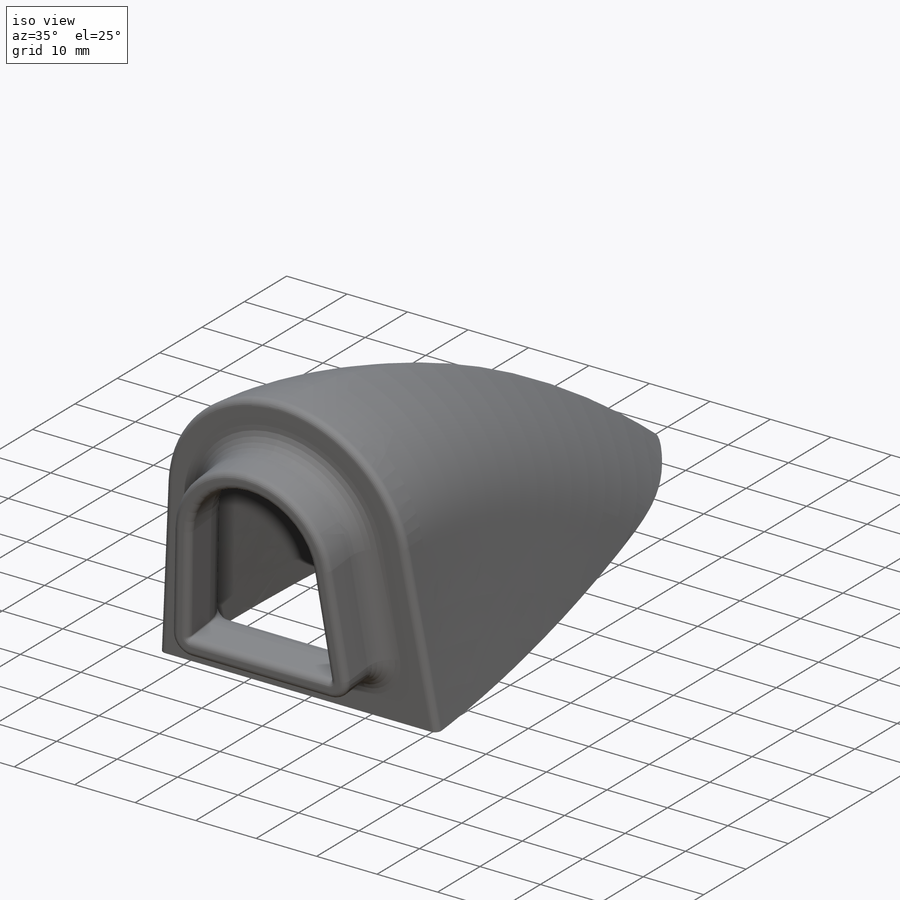
[diagram: iso view]
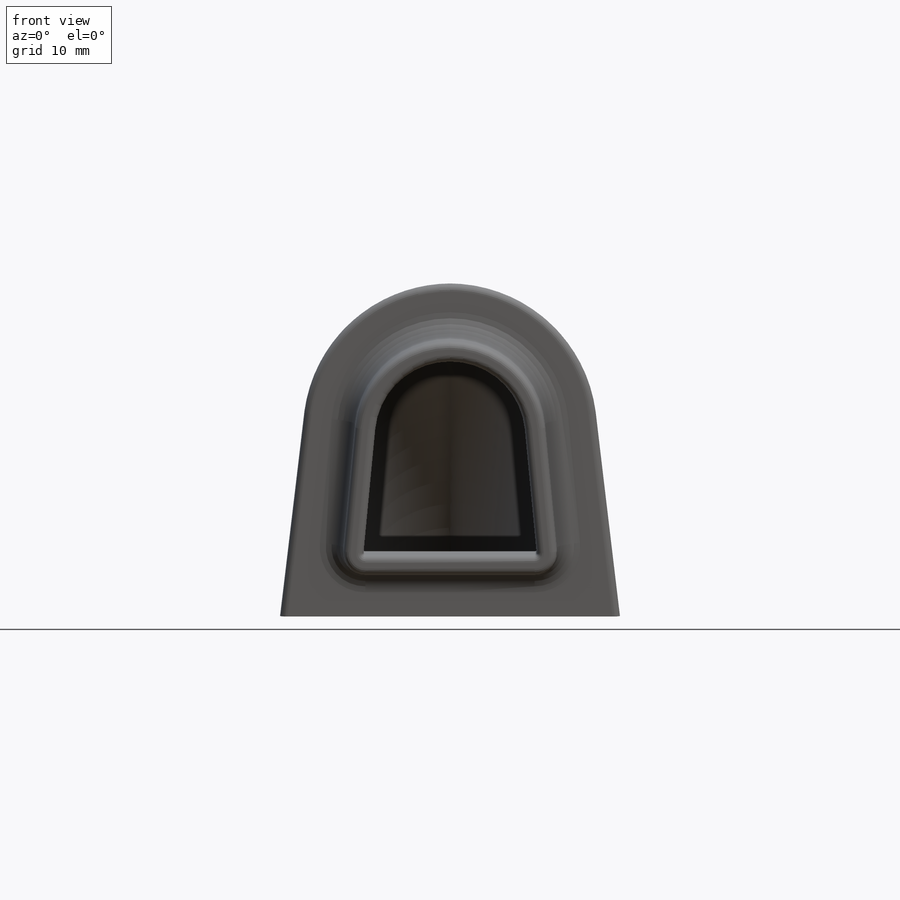
[diagram: front view]
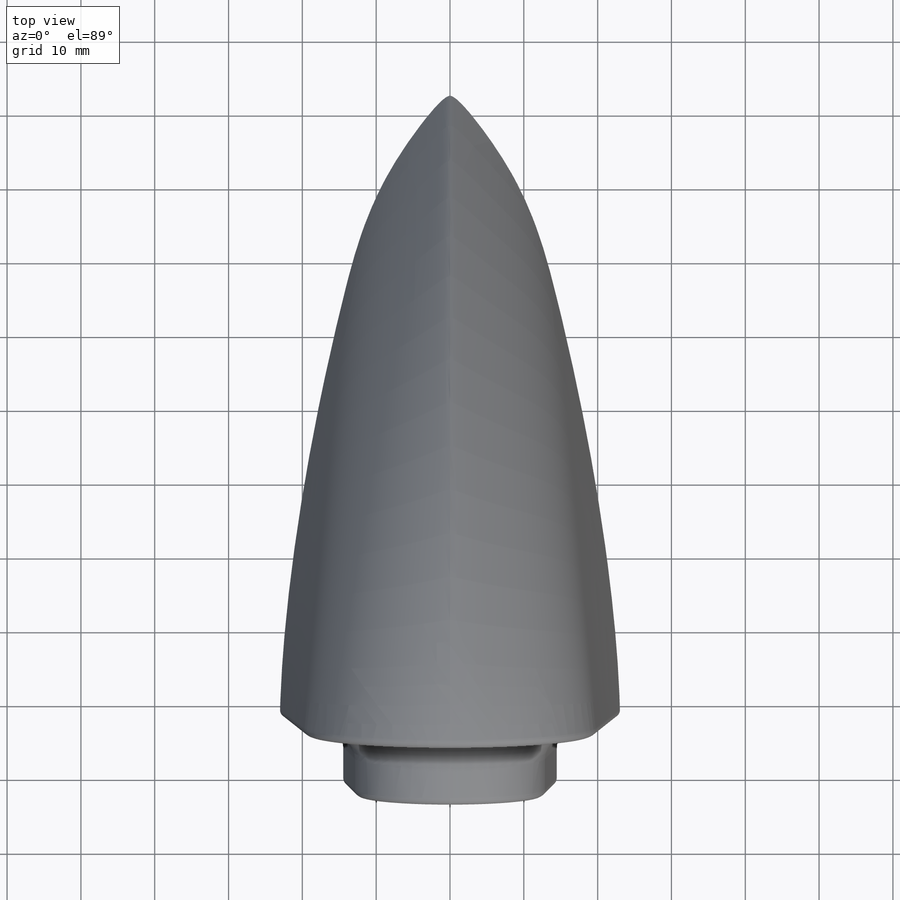
[diagram: top view]
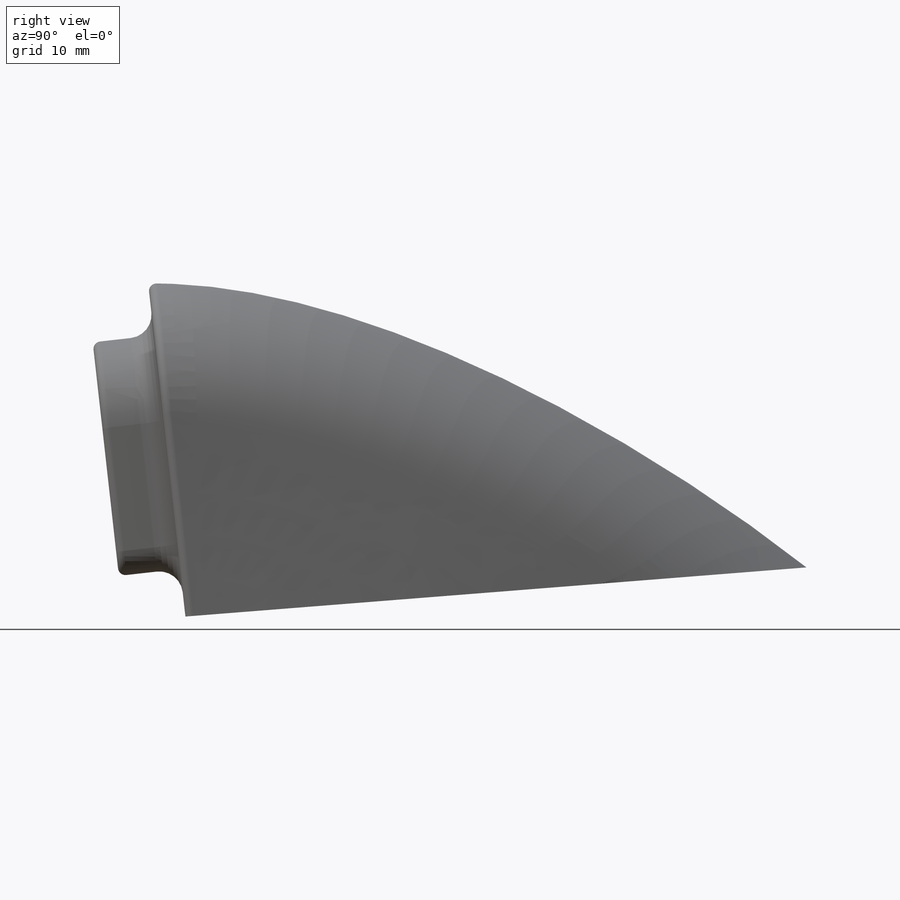
[diagram: right view]
SOLIDWORKS PART (.sldprt)
format: sldprt  version: not decoded by parser v0  size: 476,160 bytes
history: native  units: mm
features: sketch x9, fillet x4, material x1, extrude x1, mirror x1, cut_extrude x1, shell x1 + 1 further entry (+10 scaffold rows collapsed)
feature tree (29):
  scaffold x10  (default folders/planes/origin — collapsed)
  material  "ABS"
  "Annotations"  RD1=21.407mm
  sketch  "3DSketch1"  dims[D1=21.407mm D2=55.669mm]
  sketch  "3DSketch2"  dims[D1=3.175mm D2=3.175mm]
  sketch  "Sketch4"
  sketch  "Sketch5"
  sketch  "Sketch6"
  sketch  "3DSketch3"
  sketch  "3DSketch4"
  fillet  "Fillet1"  Radius=1mm
  sketch  "Sketch8"  dims[D2=3.0mm D1=6.35mm]
  extrude  "Boss-Extrude1"  Depth=8.35mm
  fillet  "Fillet2"  Radius=1mm
  fillet  "Fillet3"  Radius=3.175mm
  mirror  "Mirror1"
  sketch  "Sketch7"
  cut_extrude  "Cut-Extrude1"  [1 undecoded]
  shell  "Shell1"  Thickness=2.75mm
  fillet  "Fillet4"  Radius=1mm
decode coverage: 9 of 17 modeling features carry decoded parameters; 1 rows unclassified (native names shown)
note: 1 parameter value undecoded
note: suppression state not decoded; provenance and decode notes live in map.json
